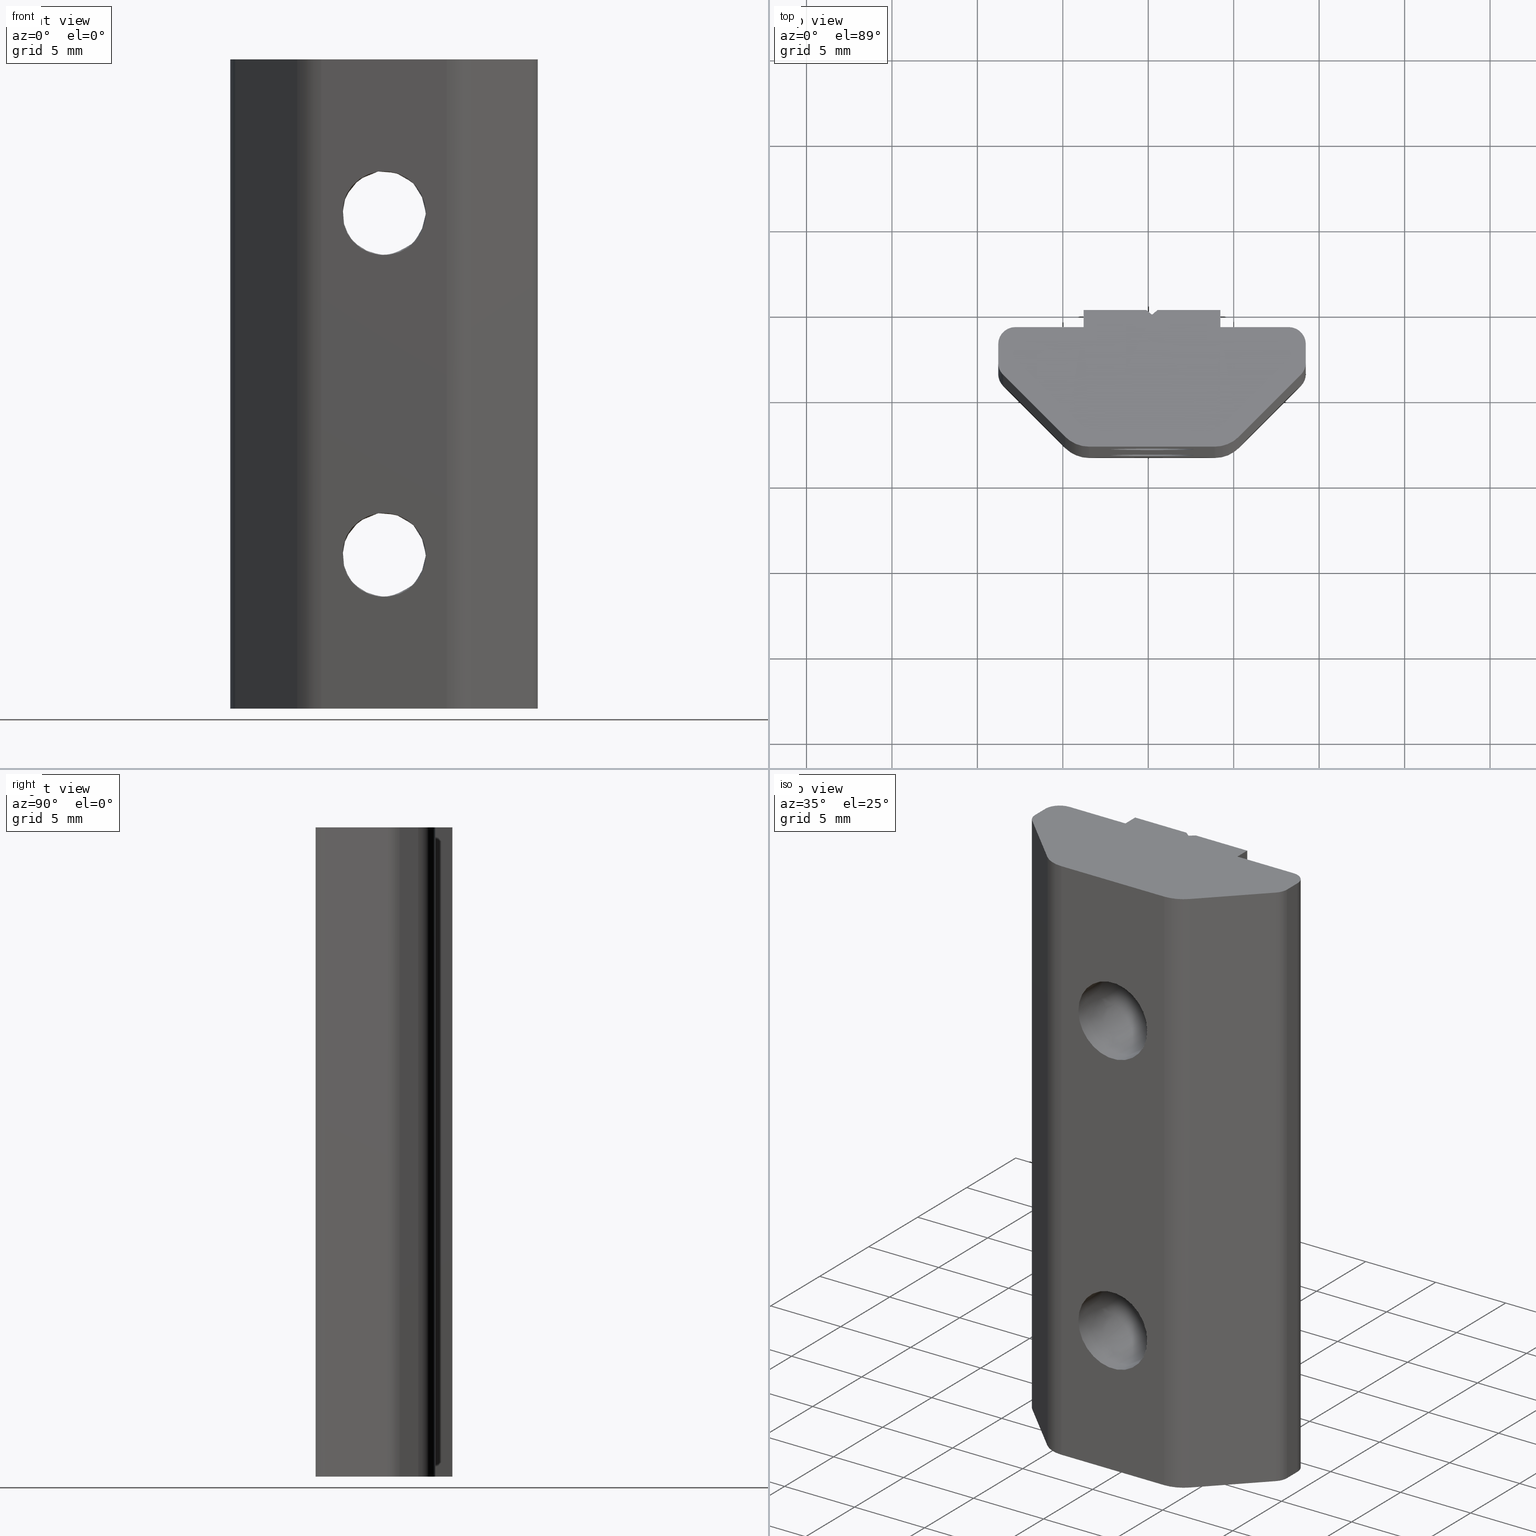
[diagram: canonical four-view strip — front | top / right | iso, engineering-drawing reading convention]
A machine part, canonical four-view strip (front | top / right | iso — engineering-drawing reading convention). The complete STEP part file that produces these views, byte-faithful:
ISO-10303-21;
HEADER;
/****************************************************************
 * Generated by software with PDE/Lib inside                    *
 * PDElib Version v51a, created Mon 03/22/2010                  *
 * International Technegroup Inc. (www.iti-oh.com)              *
 ****************************************************************/
FILE_DESCRIPTION((''),'2;1');
FILE_NAME('C:\\Users\\giancarlo\\Desktop\\Nuova cartella\\MA1400.stp','2011-05-10T15:22:58',('giancarlo'),(''),'Autodesk Inventor 2010','Autodesk Inventor 2010','');
FILE_SCHEMA(('AUTOMOTIVE_DESIGN { 1 0 10303 214 1 1 1 1 }'));
ENDSEC;
DATA;
#5=APPLICATION_CONTEXT('automotive design');
#6=APPLICATION_PROTOCOL_DEFINITION('International Standard','automotive_design',2001,#5);
#7=PRODUCT_CONTEXT('',#5,'mechanical');
#8=PRODUCT('MA1400','MA1400',$,(#7));
#9=PRODUCT_RELATED_PRODUCT_CATEGORY('part',$,(#8));
#10=PRODUCT_DEFINITION_FORMATION('',$,#8);
#11=PRODUCT_DEFINITION_CONTEXT('part definition',#5,'design');
#12=PRODUCT_DEFINITION('',$,#10,#11);
#18=(NAMED_UNIT(*)PLANE_ANGLE_UNIT()SI_UNIT($,.RADIAN.));
#19=DIMENSIONAL_EXPONENTS(0.0,0.0,0.0,0.0,0.0,0.0,0.0);
#20=PLANE_ANGLE_MEASURE_WITH_UNIT(PLANE_ANGLE_MEASURE(0.017453292500000),#18);
#24=(CONVERSION_BASED_UNIT('DEGREE',#20)NAMED_UNIT(#19)PLANE_ANGLE_UNIT());
#28=(NAMED_UNIT(*)SI_UNIT($,.STERADIAN.)SOLID_ANGLE_UNIT());
#32=(LENGTH_UNIT()NAMED_UNIT(*)SI_UNIT(.MILLI.,.METRE.));
#34=UNCERTAINTY_MEASURE_WITH_UNIT(LENGTH_MEASURE(0.010000000000000),#32,'DISTANCE_ACCURACY_VALUE','');
#36=(GEOMETRIC_REPRESENTATION_CONTEXT(3)GLOBAL_UNCERTAINTY_ASSIGNED_CONTEXT((#34))GLOBAL_UNIT_ASSIGNED_CONTEXT((#24,#28,#32))REPRESENTATION_CONTEXT('None','None'));
#37=AXIS2_PLACEMENT_3D('',#38,#39,#40);
#38=CARTESIAN_POINT('',(0.0,0.0,0.0));
#39=DIRECTION('',(0.0,0.0,1.0));
#40=DIRECTION('',(1.0,0.0,0.0));
#41=SHAPE_REPRESENTATION('',(#37),#36);
#42=PRODUCT_DEFINITION_SHAPE('','',#12);
#43=SHAPE_DEFINITION_REPRESENTATION(#42,#41);
#49=(NAMED_UNIT(*)PLANE_ANGLE_UNIT()SI_UNIT($,.RADIAN.));
#50=DIMENSIONAL_EXPONENTS(0.0,0.0,0.0,0.0,0.0,0.0,0.0);
#51=PLANE_ANGLE_MEASURE_WITH_UNIT(PLANE_ANGLE_MEASURE(0.017453292500000),#49);
#55=(CONVERSION_BASED_UNIT('DEGREE',#51)NAMED_UNIT(#50)PLANE_ANGLE_UNIT());
#59=(NAMED_UNIT(*)SI_UNIT($,.STERADIAN.)SOLID_ANGLE_UNIT());
#63=(LENGTH_UNIT()NAMED_UNIT(*)SI_UNIT(.MILLI.,.METRE.));
#65=UNCERTAINTY_MEASURE_WITH_UNIT(LENGTH_MEASURE(0.000001000000000),#63,'DISTANCE_ACCURACY_VALUE','');
#67=(GEOMETRIC_REPRESENTATION_CONTEXT(3)GLOBAL_UNCERTAINTY_ASSIGNED_CONTEXT((#65))GLOBAL_UNIT_ASSIGNED_CONTEXT((#55,#59,#63))REPRESENTATION_CONTEXT('','3D'));
#68=CARTESIAN_POINT('',(-2.240161864028735,-3.249756386998257,-9.999999999999998));
#69=CARTESIAN_POINT('',(-2.240161864028735,4.750243613001745,-9.999999999999998));
#70=CARTESIAN_POINT('',(-2.240161864028734,-3.249756386998258,-12.458499999999997));
#71=CARTESIAN_POINT('',(-2.240161864028734,4.750243613001745,-12.458499999999997));
#72=CARTESIAN_POINT('',(0.218338135971265,-3.249756386998257,-12.458499999999997));
#73=CARTESIAN_POINT('',(0.218338135971265,4.750243613001745,-12.458499999999997));
#74=CARTESIAN_POINT('',(2.676838135971265,-3.249756386998258,-12.458499999999997));
#75=CARTESIAN_POINT('',(2.676838135971265,4.750243613001745,-12.458499999999997));
#76=CARTESIAN_POINT('',(2.676838135971265,-3.249756386998257,-9.999999999999998));
#77=CARTESIAN_POINT('',(2.676838135971265,4.750243613001745,-9.999999999999998));
#78=CARTESIAN_POINT('',(2.676838135971265,-3.249756386998258,-7.541499999999999));
#79=CARTESIAN_POINT('',(2.676838135971265,4.750243613001745,-7.541499999999999));
#80=CARTESIAN_POINT('',(0.218338135971265,-3.249756386998257,-7.541499999999998));
#81=CARTESIAN_POINT('',(0.218338135971265,4.750243613001745,-7.541499999999998));
#82=CARTESIAN_POINT('',(-2.240161864028734,-3.249756386998258,-7.541499999999999));
#83=CARTESIAN_POINT('',(-2.240161864028734,4.750243613001745,-7.541499999999999));
#84=CARTESIAN_POINT('',(-2.240161864028735,-3.249756386998257,-9.999999999999998));
#85=CARTESIAN_POINT('',(-2.240161864028735,4.750243613001745,-9.999999999999998));
#93=(BOUNDED_SURFACE()B_SPLINE_SURFACE(1,2,((#68,#70,#72,#74,#76,#78,#80,#82,#84),(#69,#71,#73,#75,#77,#79,#81,#83,#85)),.UNSPECIFIED.,.F.,.T.,.U.)B_SPLINE_SURFACE_WITH_KNOTS((2,2),(3,2,2,2,3),(-1.830384380719951,1.423632296115518),(0.0,3.861802769425253,7.723605538850507,11.585408308275760,15.447211077701013),.UNSPECIFIED.)GEOMETRIC_REPRESENTATION_ITEM()RATIONAL_B_SPLINE_SURFACE(((1.0,0.707106781186548,1.0,0.707106781186548,1.0,0.707106781186548,1.0,0.707106781186548,1.0),(1.0,0.707106781186548,1.0,0.707106781186548,1.0,0.707106781186548,1.0,0.707106781186548,1.0)))REPRESENTATION_ITEM('')SURFACE());
#94=CARTESIAN_POINT('',(-0.124948554028734,4.750243613001743,-7.565584978178771));
#95=VERTEX_POINT('',#94);
#96=CARTESIAN_POINT('',(-0.124948554028734,4.750243613001743,-12.434415021821225));
#97=VERTEX_POINT('',#96);
#98=CARTESIAN_POINT('',(0.218338135971265,4.750243613001743,-9.999999999999998));
#99=DIRECTION('',(0.0,-1.0,0.0));
#100=DIRECTION('',(1.0,0.0,0.0));
#101=AXIS2_PLACEMENT_3D('',#98,#99,#100);
#102=CIRCLE('',#101,2.458500000000000);
#103=EDGE_CURVE('',#95,#97,#102,.T.);
#104=ORIENTED_EDGE('',*,*,#103,.F.);
#105=CARTESIAN_POINT('',(0.218338135971266,4.475982393001743,-7.541499999999997));
#106=VERTEX_POINT('',#105);
#107=CARTESIAN_POINT('',(0.218338135971265,4.475982393001743,-9.999999999999998));
#108=DIRECTION('',(-0.624184046707921,-0.781277336056360,0.0));
#109=DIRECTION('',(0.781277336056360,-0.624184046707921,0.0));
#110=AXIS2_PLACEMENT_3D('',#107,#108,#109);
#111=ELLIPSE('',#110,3.146769894042653,2.458500000000000);
#112=EDGE_CURVE('',#106,#95,#111,.T.);
#113=ORIENTED_EDGE('',*,*,#112,.F.);
#114=CARTESIAN_POINT('',(0.546678795971260,4.750243613001743,-7.563524130841683));
#115=VERTEX_POINT('',#114);
#116=CARTESIAN_POINT('',(0.218338135971265,4.475982393001743,-9.999999999999998));
#117=DIRECTION('',(0.641072361128141,-0.767480441312735,0.0));
#118=DIRECTION('',(0.767480441312735,0.641072361128141,0.0));
#119=AXIS2_PLACEMENT_3D('',#116,#117,#118);
#120=ELLIPSE('',#119,3.203338961700269,2.458500000000000);
#121=EDGE_CURVE('',#115,#106,#120,.T.);
#122=ORIENTED_EDGE('',*,*,#121,.F.);
#123=CARTESIAN_POINT('',(0.546678795971260,4.750243613001743,-12.436475869158311));
#124=VERTEX_POINT('',#123);
#125=CARTESIAN_POINT('',(0.218338135971265,4.750243613001743,-9.999999999999998));
#126=DIRECTION('',(0.0,-1.0,0.0));
#127=DIRECTION('',(1.0,0.0,0.0));
#128=AXIS2_PLACEMENT_3D('',#125,#126,#127);
#129=CIRCLE('',#128,2.458500000000000);
#130=EDGE_CURVE('',#124,#115,#129,.T.);
#131=ORIENTED_EDGE('',*,*,#130,.F.);
#132=CARTESIAN_POINT('',(0.218338135971266,4.475982393001743,-12.458499999999999));
#133=VERTEX_POINT('',#132);
#134=CARTESIAN_POINT('',(0.218338135971265,4.475982393001743,-9.999999999999998));
#135=DIRECTION('',(0.641072361128141,-0.767480441312735,0.0));
#136=DIRECTION('',(0.767480441312735,0.641072361128141,0.0));
#137=AXIS2_PLACEMENT_3D('',#134,#135,#136);
#138=ELLIPSE('',#137,3.203338961700269,2.458500000000000);
#139=EDGE_CURVE('',#133,#124,#138,.T.);
#140=ORIENTED_EDGE('',*,*,#139,.F.);
#141=CARTESIAN_POINT('',(0.218338135971265,4.475982393001743,-9.999999999999998));
#142=DIRECTION('',(-0.624184046707921,-0.781277336056360,0.0));
#143=DIRECTION('',(0.781277336056360,-0.624184046707921,0.0));
#144=AXIS2_PLACEMENT_3D('',#141,#142,#143);
#145=ELLIPSE('',#144,3.146769894042653,2.458500000000000);
#146=EDGE_CURVE('',#97,#133,#145,.T.);
#147=ORIENTED_EDGE('',*,*,#146,.F.);
#148=EDGE_LOOP('',(#104,#113,#122,#131,#140,#147));
#149=FACE_OUTER_BOUND('',#148,.T.);
#150=CARTESIAN_POINT('',(2.676838135971265,-3.249756386998257,-9.999999999999998));
#151=VERTEX_POINT('',#150);
#152=CARTESIAN_POINT('',(0.218338135971265,-3.249756386998257,-9.999999999999998));
#153=DIRECTION('',(0.0,1.0,0.0));
#154=DIRECTION('',(1.0,0.0,0.0));
#155=AXIS2_PLACEMENT_3D('',#152,#153,#154);
#156=CIRCLE('',#155,2.458500000000000);
#157=EDGE_CURVE('',#151,#151,#156,.T.);
#158=ORIENTED_EDGE('',*,*,#157,.F.);
#159=EDGE_LOOP('',(#158));
#160=FACE_BOUND('',#159,.T.);
#161=ADVANCED_FACE('',(#149,#160),#93,.F.);
#162=CARTESIAN_POINT('',(-2.240161864028735,-3.249756386998257,10.0));
#163=CARTESIAN_POINT('',(-2.240161864028735,4.750243613001745,10.0));
#164=CARTESIAN_POINT('',(-2.240161864028734,-3.249756386998258,7.541500000000000));
#165=CARTESIAN_POINT('',(-2.240161864028734,4.750243613001745,7.541500000000000));
#166=CARTESIAN_POINT('',(0.218338135971265,-3.249756386998257,7.541500000000000));
#167=CARTESIAN_POINT('',(0.218338135971265,4.750243613001745,7.541500000000000));
#168=CARTESIAN_POINT('',(2.676838135971265,-3.249756386998258,7.541500000000000));
#169=CARTESIAN_POINT('',(2.676838135971265,4.750243613001745,7.541500000000000));
#170=CARTESIAN_POINT('',(2.676838135971265,-3.249756386998257,10.0));
#171=CARTESIAN_POINT('',(2.676838135971265,4.750243613001745,10.0));
#172=CARTESIAN_POINT('',(2.676838135971265,-3.249756386998258,12.458499999999999));
#173=CARTESIAN_POINT('',(2.676838135971265,4.750243613001745,12.458499999999999));
#174=CARTESIAN_POINT('',(0.218338135971265,-3.249756386998257,12.458500000000001));
#175=CARTESIAN_POINT('',(0.218338135971265,4.750243613001745,12.458500000000001));
#176=CARTESIAN_POINT('',(-2.240161864028734,-3.249756386998258,12.458499999999999));
#177=CARTESIAN_POINT('',(-2.240161864028734,4.750243613001745,12.458499999999999));
#178=CARTESIAN_POINT('',(-2.240161864028735,-3.249756386998257,10.0));
#179=CARTESIAN_POINT('',(-2.240161864028735,4.750243613001745,10.0));
#187=(BOUNDED_SURFACE()B_SPLINE_SURFACE(1,2,((#162,#164,#166,#168,#170,#172,#174,#176,#178),(#163,#165,#167,#169,#171,#173,#175,#177,#179)),.UNSPECIFIED.,.F.,.T.,.U.)B_SPLINE_SURFACE_WITH_KNOTS((2,2),(3,2,2,2,3),(-1.830384380719951,1.423632296115518),(0.0,3.861802769425253,7.723605538850507,11.585408308275760,15.447211077701013),.UNSPECIFIED.)GEOMETRIC_REPRESENTATION_ITEM()RATIONAL_B_SPLINE_SURFACE(((1.0,0.707106781186548,1.0,0.707106781186548,1.0,0.707106781186548,1.0,0.707106781186548,1.0),(1.0,0.707106781186548,1.0,0.707106781186548,1.0,0.707106781186548,1.0,0.707106781186548,1.0)))REPRESENTATION_ITEM('')SURFACE());
#188=CARTESIAN_POINT('',(-0.124948554028734,4.750243613001743,12.434415021821227));
#189=VERTEX_POINT('',#188);
#190=CARTESIAN_POINT('',(-0.124948554028734,4.750243613001743,7.565584978178773));
#191=VERTEX_POINT('',#190);
#192=CARTESIAN_POINT('',(0.218338135971265,4.750243613001743,10.0));
#193=DIRECTION('',(0.0,-1.0,0.0));
#194=DIRECTION('',(1.0,0.0,0.0));
#195=AXIS2_PLACEMENT_3D('',#192,#193,#194);
#196=CIRCLE('',#195,2.458500000000000);
#197=EDGE_CURVE('',#189,#191,#196,.T.);
#198=ORIENTED_EDGE('',*,*,#197,.F.);
#199=CARTESIAN_POINT('',(0.218338135971266,4.475982393001743,12.458499999999999));
#200=VERTEX_POINT('',#199);
#201=CARTESIAN_POINT('',(0.218338135971265,4.475982393001743,10.0));
#202=DIRECTION('',(-0.624184046707921,-0.781277336056360,0.0));
#203=DIRECTION('',(0.781277336056360,-0.624184046707921,0.0));
#204=AXIS2_PLACEMENT_3D('',#201,#202,#203);
#205=ELLIPSE('',#204,3.146769894042653,2.458500000000000);
#206=EDGE_CURVE('',#200,#189,#205,.T.);
#207=ORIENTED_EDGE('',*,*,#206,.F.);
#208=CARTESIAN_POINT('',(0.546678795971260,4.750243613001743,12.436475869158315));
#209=VERTEX_POINT('',#208);
#210=CARTESIAN_POINT('',(0.218338135971265,4.475982393001743,10.0));
#211=DIRECTION('',(0.641072361128141,-0.767480441312735,0.0));
#212=DIRECTION('',(0.767480441312735,0.641072361128141,0.0));
#213=AXIS2_PLACEMENT_3D('',#210,#211,#212);
#214=ELLIPSE('',#213,3.203338961700269,2.458500000000000);
#215=EDGE_CURVE('',#209,#200,#214,.T.);
#216=ORIENTED_EDGE('',*,*,#215,.F.);
#217=CARTESIAN_POINT('',(0.546678795971260,4.750243613001743,7.563524130841684));
#218=VERTEX_POINT('',#217);
#219=CARTESIAN_POINT('',(0.218338135971265,4.750243613001743,10.0));
#220=DIRECTION('',(0.0,-1.0,0.0));
#221=DIRECTION('',(1.0,0.0,0.0));
#222=AXIS2_PLACEMENT_3D('',#219,#220,#221);
#223=CIRCLE('',#222,2.458500000000000);
#224=EDGE_CURVE('',#218,#209,#223,.T.);
#225=ORIENTED_EDGE('',*,*,#224,.F.);
#226=CARTESIAN_POINT('',(0.218338135971266,4.475982393001743,7.541500000000000));
#227=VERTEX_POINT('',#226);
#228=CARTESIAN_POINT('',(0.218338135971265,4.475982393001743,10.0));
#229=DIRECTION('',(0.641072361128141,-0.767480441312735,0.0));
#230=DIRECTION('',(0.767480441312735,0.641072361128141,0.0));
#231=AXIS2_PLACEMENT_3D('',#228,#229,#230);
#232=ELLIPSE('',#231,3.203338961700269,2.458500000000000);
#233=EDGE_CURVE('',#227,#218,#232,.T.);
#234=ORIENTED_EDGE('',*,*,#233,.F.);
#235=CARTESIAN_POINT('',(0.218338135971265,4.475982393001743,10.0));
#236=DIRECTION('',(-0.624184046707921,-0.781277336056360,0.0));
#237=DIRECTION('',(0.781277336056360,-0.624184046707921,0.0));
#238=AXIS2_PLACEMENT_3D('',#235,#236,#237);
#239=ELLIPSE('',#238,3.146769894042653,2.458500000000000);
#240=EDGE_CURVE('',#191,#227,#239,.T.);
#241=ORIENTED_EDGE('',*,*,#240,.F.);
#242=EDGE_LOOP('',(#198,#207,#216,#225,#234,#241));
#243=FACE_OUTER_BOUND('',#242,.T.);
#244=CARTESIAN_POINT('',(2.676838135971265,-3.249756386998257,10.0));
#245=VERTEX_POINT('',#244);
#246=CARTESIAN_POINT('',(0.218338135971265,-3.249756386998257,10.0));
#247=DIRECTION('',(0.0,1.0,0.0));
#248=DIRECTION('',(1.0,0.0,0.0));
#249=AXIS2_PLACEMENT_3D('',#246,#247,#248);
#250=CIRCLE('',#249,2.458500000000000);
#251=EDGE_CURVE('',#245,#245,#250,.T.);
#252=ORIENTED_EDGE('',*,*,#251,.F.);
#253=EDGE_LOOP('',(#252));
#254=FACE_BOUND('',#253,.T.);
#255=ADVANCED_FACE('',(#243,#254),#187,.F.);
#256=CARTESIAN_POINT('',(0.546678795971260,4.750243613001743,0.0));
#257=DIRECTION('',(0.0,1.0,0.0));
#258=DIRECTION('',(0.0,0.0,1.0));
#259=AXIS2_PLACEMENT_3D('',#256,#257,#258);
#260=PLANE('',#259);
#261=ORIENTED_EDGE('',*,*,#130,.T.);
#262=CARTESIAN_POINT('',(0.546678795971260,4.750243613001743,7.563524130841684));
#263=DIRECTION('',(0.0,0.0,-1.0));
#264=VECTOR('',#263,15.127048261683367);
#265=LINE('',#262,#264);
#266=EDGE_CURVE('',#218,#115,#265,.T.);
#267=ORIENTED_EDGE('',*,*,#266,.F.);
#268=ORIENTED_EDGE('',*,*,#224,.T.);
#269=CARTESIAN_POINT('',(0.546678795971260,4.750243613001743,19.0));
#270=VERTEX_POINT('',#269);
#271=CARTESIAN_POINT('',(0.546678795971260,4.750243613001743,19.0));
#272=DIRECTION('',(0.0,0.0,-1.0));
#273=VECTOR('',#272,6.563524130841685);
#274=LINE('',#271,#273);
#275=EDGE_CURVE('',#270,#209,#274,.T.);
#276=ORIENTED_EDGE('',*,*,#275,.F.);
#277=CARTESIAN_POINT('',(4.218338135971266,4.750243613001743,19.0));
#278=VERTEX_POINT('',#277);
#279=CARTESIAN_POINT('',(0.546678795971260,4.750243613001743,19.0));
#280=DIRECTION('',(1.0,0.0,0.0));
#281=VECTOR('',#280,3.671659340000005);
#282=LINE('',#279,#281);
#283=EDGE_CURVE('',#270,#278,#282,.T.);
#284=ORIENTED_EDGE('',*,*,#283,.T.);
#285=CARTESIAN_POINT('',(4.218338135971266,4.750243613001743,-19.0));
#286=VERTEX_POINT('',#285);
#287=CARTESIAN_POINT('',(4.218338135971266,4.750243613001743,19.0));
#288=DIRECTION('',(0.0,0.0,-1.0));
#289=VECTOR('',#288,38.0);
#290=LINE('',#287,#289);
#291=EDGE_CURVE('',#278,#286,#290,.T.);
#292=ORIENTED_EDGE('',*,*,#291,.T.);
#293=CARTESIAN_POINT('',(0.546678795971260,4.750243613001743,-19.0));
#294=VERTEX_POINT('',#293);
#295=CARTESIAN_POINT('',(4.218338135971266,4.750243613001743,-19.0));
#296=DIRECTION('',(-1.0,0.0,0.0));
#297=VECTOR('',#296,3.671659340000005);
#298=LINE('',#295,#297);
#299=EDGE_CURVE('',#286,#294,#298,.T.);
#300=ORIENTED_EDGE('',*,*,#299,.T.);
#301=CARTESIAN_POINT('',(0.546678795971260,4.750243613001743,-12.436475869158311));
#302=DIRECTION('',(0.0,0.0,-1.0));
#303=VECTOR('',#302,6.563524130841689);
#304=LINE('',#301,#303);
#305=EDGE_CURVE('',#124,#294,#304,.T.);
#306=ORIENTED_EDGE('',*,*,#305,.F.);
#307=EDGE_LOOP('',(#261,#267,#268,#276,#284,#292,#300,#306));
#308=FACE_OUTER_BOUND('',#307,.T.);
#309=ADVANCED_FACE('',(#308),#260,.T.);
#310=CARTESIAN_POINT('',(0.218338135971266,4.475982393001743,0.0));
#311=DIRECTION('',(-0.641072361128141,0.767480441312735,0.0));
#312=DIRECTION('',(0.0,0.0,1.0));
#313=AXIS2_PLACEMENT_3D('',#310,#311,#312);
#314=PLANE('',#313);
#315=ORIENTED_EDGE('',*,*,#215,.T.);
#316=CARTESIAN_POINT('',(0.218338135971266,4.475982393001743,19.0));
#317=VERTEX_POINT('',#316);
#318=CARTESIAN_POINT('',(0.218338135971266,4.475982393001743,19.0));
#319=DIRECTION('',(0.0,0.0,-1.0));
#320=VECTOR('',#319,6.541500000000001);
#321=LINE('',#318,#320);
#322=EDGE_CURVE('',#317,#200,#321,.T.);
#323=ORIENTED_EDGE('',*,*,#322,.F.);
#324=CARTESIAN_POINT('',(0.218338135971266,4.475982393001743,19.0));
#325=DIRECTION('',(0.767480441312735,0.641072361128141,0.0));
#326=VECTOR('',#325,0.427816322508995);
#327=LINE('',#324,#326);
#328=EDGE_CURVE('',#317,#270,#327,.T.);
#329=ORIENTED_EDGE('',*,*,#328,.T.);
#330=ORIENTED_EDGE('',*,*,#275,.T.);
#331=EDGE_LOOP('',(#315,#323,#329,#330));
#332=FACE_OUTER_BOUND('',#331,.T.);
#333=ADVANCED_FACE('',(#332),#314,.T.);
#334=CARTESIAN_POINT('',(0.218338135971266,4.475982393001743,0.0));
#335=DIRECTION('',(-0.641072361128141,0.767480441312735,0.0));
#336=DIRECTION('',(0.0,0.0,1.0));
#337=AXIS2_PLACEMENT_3D('',#334,#335,#336);
#338=PLANE('',#337);
#339=ORIENTED_EDGE('',*,*,#121,.T.);
#340=CARTESIAN_POINT('',(0.218338135971266,4.475982393001743,7.541500000000000));
#341=DIRECTION('',(0.0,0.0,-1.0));
#342=VECTOR('',#341,15.082999999999998);
#343=LINE('',#340,#342);
#344=EDGE_CURVE('',#227,#106,#343,.T.);
#345=ORIENTED_EDGE('',*,*,#344,.F.);
#346=ORIENTED_EDGE('',*,*,#233,.T.);
#347=ORIENTED_EDGE('',*,*,#266,.T.);
#348=EDGE_LOOP('',(#339,#345,#346,#347));
#349=FACE_OUTER_BOUND('',#348,.T.);
#350=ADVANCED_FACE('',(#349),#338,.T.);
#351=CARTESIAN_POINT('',(-0.124948554028734,4.750243613001743,0.0));
#352=DIRECTION('',(0.624184046707922,0.781277336056361,0.0));
#353=DIRECTION('',(0.0,0.0,-1.0));
#354=AXIS2_PLACEMENT_3D('',#351,#352,#353);
#355=PLANE('',#354);
#356=ORIENTED_EDGE('',*,*,#206,.T.);
#357=CARTESIAN_POINT('',(-0.124948554028734,4.750243613001743,19.0));
#358=VERTEX_POINT('',#357);
#359=CARTESIAN_POINT('',(-0.124948554028734,4.750243613001743,19.0));
#360=DIRECTION('',(0.0,0.0,-1.0));
#361=VECTOR('',#360,6.565584978178773);
#362=LINE('',#359,#361);
#363=EDGE_CURVE('',#358,#189,#362,.T.);
#364=ORIENTED_EDGE('',*,*,#363,.F.);
#365=CARTESIAN_POINT('',(-0.124948554028734,4.750243613001743,19.0));
#366=DIRECTION('',(0.781277336056361,-0.624184046707921,0.0));
#367=VECTOR('',#366,0.439391588821457);
#368=LINE('',#365,#367);
#369=EDGE_CURVE('',#358,#317,#368,.T.);
#370=ORIENTED_EDGE('',*,*,#369,.T.);
#371=ORIENTED_EDGE('',*,*,#322,.T.);
#372=EDGE_LOOP('',(#356,#364,#370,#371));
#373=FACE_OUTER_BOUND('',#372,.T.);
#374=ADVANCED_FACE('',(#373),#355,.T.);
#375=CARTESIAN_POINT('',(-0.124948554028734,4.750243613001743,0.0));
#376=DIRECTION('',(0.624184046707922,0.781277336056361,0.0));
#377=DIRECTION('',(0.0,0.0,-1.0));
#378=AXIS2_PLACEMENT_3D('',#375,#376,#377);
#379=PLANE('',#378);
#380=ORIENTED_EDGE('',*,*,#112,.T.);
#381=CARTESIAN_POINT('',(-0.124948554028734,4.750243613001743,7.565584978178773));
#382=DIRECTION('',(0.0,0.0,-1.0));
#383=VECTOR('',#382,15.131169956357544);
#384=LINE('',#381,#383);
#385=EDGE_CURVE('',#191,#95,#384,.T.);
#386=ORIENTED_EDGE('',*,*,#385,.F.);
#387=ORIENTED_EDGE('',*,*,#240,.T.);
#388=ORIENTED_EDGE('',*,*,#344,.T.);
#389=EDGE_LOOP('',(#380,#386,#387,#388));
#390=FACE_OUTER_BOUND('',#389,.T.);
#391=ADVANCED_FACE('',(#390),#379,.T.);
#392=CARTESIAN_POINT('',(0.218334537956858,1.147857091245414,-19.0));
#393=DIRECTION('',(0.0,0.0,1.0));
#394=DIRECTION('',(1.0,0.0,0.0));
#395=AXIS2_PLACEMENT_3D('',#392,#393,#394);
#396=PLANE('',#395);
#397=CARTESIAN_POINT('',(-3.781661864028735,3.750243613001743,-19.0));
#398=VERTEX_POINT('',#397);
#399=CARTESIAN_POINT('',(-7.781661864028735,3.750243613001743,-19.0));
#400=VERTEX_POINT('',#399);
#401=CARTESIAN_POINT('',(-3.781661864028735,3.750243613001743,-19.0));
#402=DIRECTION('',(-1.0,0.0,0.0));
#403=VECTOR('',#402,4.0);
#404=LINE('',#401,#403);
#405=EDGE_CURVE('',#398,#400,#404,.T.);
#406=ORIENTED_EDGE('',*,*,#405,.F.);
#407=CARTESIAN_POINT('',(-3.781661864028735,4.750243613001743,-19.0));
#408=VERTEX_POINT('',#407);
#409=CARTESIAN_POINT('',(-3.781661864028735,4.750243613001743,-19.0));
#410=DIRECTION('',(0.0,-1.0,0.0));
#411=VECTOR('',#410,1.0);
#412=LINE('',#409,#411);
#413=EDGE_CURVE('',#408,#398,#412,.T.);
#414=ORIENTED_EDGE('',*,*,#413,.F.);
#415=CARTESIAN_POINT('',(-0.124948554028734,4.750243613001743,-19.0));
#416=VERTEX_POINT('',#415);
#417=CARTESIAN_POINT('',(-0.124948554028733,4.750243613001743,-19.0));
#418=DIRECTION('',(-1.0,0.0,0.0));
#419=VECTOR('',#418,3.656713310000001);
#420=LINE('',#417,#419);
#421=EDGE_CURVE('',#416,#408,#420,.T.);
#422=ORIENTED_EDGE('',*,*,#421,.F.);
#423=CARTESIAN_POINT('',(0.218338135971266,4.475982393001743,-19.0));
#424=VERTEX_POINT('',#423);
#425=CARTESIAN_POINT('',(0.218338135971266,4.475982393001743,-19.0));
#426=DIRECTION('',(-0.781277336056361,0.624184046707921,0.0));
#427=VECTOR('',#426,0.439391588821457);
#428=LINE('',#425,#427);
#429=EDGE_CURVE('',#424,#416,#428,.T.);
#430=ORIENTED_EDGE('',*,*,#429,.F.);
#431=CARTESIAN_POINT('',(0.546678795971260,4.750243613001743,-19.0));
#432=DIRECTION('',(-0.767480441312735,-0.641072361128141,0.0));
#433=VECTOR('',#432,0.427816322508995);
#434=LINE('',#431,#433);
#435=EDGE_CURVE('',#294,#424,#434,.T.);
#436=ORIENTED_EDGE('',*,*,#435,.F.);
#437=ORIENTED_EDGE('',*,*,#299,.F.);
#438=CARTESIAN_POINT('',(4.218338135971266,3.750243613001743,-19.0));
#439=VERTEX_POINT('',#438);
#440=CARTESIAN_POINT('',(4.218338135971266,3.750243613001743,-19.0));
#441=DIRECTION('',(0.0,1.0,0.0));
#442=VECTOR('',#441,1.000000000000000);
#443=LINE('',#440,#442);
#444=EDGE_CURVE('',#439,#286,#443,.T.);
#445=ORIENTED_EDGE('',*,*,#444,.F.);
#446=CARTESIAN_POINT('',(8.218338135971266,3.750243613001743,-19.0));
#447=VERTEX_POINT('',#446);
#448=CARTESIAN_POINT('',(8.218338135971266,3.750243613001743,-19.0));
#449=DIRECTION('',(-1.0,0.0,0.0));
#450=VECTOR('',#449,4.0);
#451=LINE('',#448,#450);
#452=EDGE_CURVE('',#447,#439,#451,.T.);
#453=ORIENTED_EDGE('',*,*,#452,.F.);
#454=CARTESIAN_POINT('',(9.218338135971266,2.750243613001743,-19.0));
#455=VERTEX_POINT('',#454);
#456=CARTESIAN_POINT('',(8.218338131920138,2.750243608950616,-19.0));
#457=DIRECTION('',(0.0,0.0,1.0));
#458=DIRECTION('',(-1.0,-4.051127E-009,0.0));
#459=AXIS2_PLACEMENT_3D('',#456,#457,#458);
#460=CIRCLE('',#459,1.000000004051127);
#461=EDGE_CURVE('',#455,#447,#460,.T.);
#462=ORIENTED_EDGE('',*,*,#461,.F.);
#463=CARTESIAN_POINT('',(9.218338135971266,1.664457173001750,-19.0));
#464=VERTEX_POINT('',#463);
#465=CARTESIAN_POINT('',(9.218338135971266,1.664457173001751,-19.0));
#466=DIRECTION('',(0.0,1.0,0.0));
#467=VECTOR('',#466,1.085786439999993);
#468=LINE('',#465,#467);
#469=EDGE_CURVE('',#464,#455,#468,.T.);
#470=ORIENTED_EDGE('',*,*,#469,.F.);
#471=CARTESIAN_POINT('',(8.925444915971269,0.957350393001747,-19.0));
#472=VERTEX_POINT('',#471);
#473=CARTESIAN_POINT('',(8.218338148980866,1.664457169986085,-19.0));
#474=DIRECTION('',(0.0,0.0,1.0));
#475=DIRECTION('',(-0.707106776189580,0.707106786183515,0.0));
#476=AXIS2_PLACEMENT_3D('',#473,#474,#475);
#477=CIRCLE('',#476,0.999999986990400);
#478=EDGE_CURVE('',#472,#464,#477,.T.);
#479=ORIENTED_EDGE('',*,*,#478,.F.);
#480=CARTESIAN_POINT('',(5.304124575971273,-2.663969946998237,-19.0));
#481=VERTEX_POINT('',#480);
#482=CARTESIAN_POINT('',(5.304124575971271,-2.663969946998237,-19.0));
#483=DIRECTION('',(0.707106781186549,0.707106781186546,0.0));
#484=VECTOR('',#483,5.121320338525535);
#485=LINE('',#482,#484);
#486=EDGE_CURVE('',#481,#472,#485,.T.);
#487=ORIENTED_EDGE('',*,*,#486,.F.);
#488=CARTESIAN_POINT('',(3.889911015971265,-3.249756386998257,-19.0));
#489=VERTEX_POINT('',#488);
#490=CARTESIAN_POINT('',(3.889911022002561,-1.249756413017444,-19.0));
#491=DIRECTION('',(0.0,0.0,1.0));
#492=DIRECTION('',(3.015648E-009,1.0,0.0));
#493=AXIS2_PLACEMENT_3D('',#490,#491,#492);
#494=CIRCLE('',#493,1.999999973980814);
#495=EDGE_CURVE('',#489,#481,#494,.T.);
#496=ORIENTED_EDGE('',*,*,#495,.F.);
#497=CARTESIAN_POINT('',(-3.453234744028734,-3.249756386998257,-19.0));
#498=VERTEX_POINT('',#497);
#499=CARTESIAN_POINT('',(-3.453234744028734,-3.249756386998257,-19.0));
#500=DIRECTION('',(1.0,0.0,0.0));
#501=VECTOR('',#500,7.343145759999999);
#502=LINE('',#499,#501);
#503=EDGE_CURVE('',#498,#489,#502,.T.);
#504=ORIENTED_EDGE('',*,*,#503,.F.);
#505=CARTESIAN_POINT('',(-4.867448304028741,-2.663969946998237,-19.0));
#506=VERTEX_POINT('',#505);
#507=CARTESIAN_POINT('',(-3.453234750060030,-1.249756413017444,-19.0));
#508=DIRECTION('',(0.0,0.0,1.0));
#509=DIRECTION('',(0.707106786183527,0.707106776189568,0.0));
#510=AXIS2_PLACEMENT_3D('',#507,#508,#509);
#511=CIRCLE('',#510,1.999999973980813);
#512=EDGE_CURVE('',#506,#498,#511,.T.);
#513=ORIENTED_EDGE('',*,*,#512,.F.);
#514=CARTESIAN_POINT('',(-8.488768644028738,0.957350393001747,-19.0));
#515=VERTEX_POINT('',#514);
#516=CARTESIAN_POINT('',(-8.488768644028738,0.957350393001748,-19.0));
#517=DIRECTION('',(0.707106781186549,-0.707106781186546,0.0));
#518=VECTOR('',#517,5.121320338525535);
#519=LINE('',#516,#518);
#520=EDGE_CURVE('',#515,#506,#519,.T.);
#521=ORIENTED_EDGE('',*,*,#520,.F.);
#522=CARTESIAN_POINT('',(-8.781661864028735,1.664457173001751,-19.0));
#523=VERTEX_POINT('',#522);
#524=CARTESIAN_POINT('',(-7.781661877038335,1.664457169986085,-19.0));
#525=DIRECTION('',(0.0,0.0,1.0));
#526=DIRECTION('',(1.0,-3.015666E-009,0.0));
#527=AXIS2_PLACEMENT_3D('',#524,#525,#526);
#528=CIRCLE('',#527,0.999999986990400);
#529=EDGE_CURVE('',#523,#515,#528,.T.);
#530=ORIENTED_EDGE('',*,*,#529,.F.);
#531=CARTESIAN_POINT('',(-8.781661864028735,2.750243613001743,-19.0));
#532=VERTEX_POINT('',#531);
#533=CARTESIAN_POINT('',(-8.781661864028735,2.750243613001743,-19.0));
#534=DIRECTION('',(0.0,-1.0,0.0));
#535=VECTOR('',#534,1.085786439999993);
#536=LINE('',#533,#535);
#537=EDGE_CURVE('',#532,#523,#536,.T.);
#538=ORIENTED_EDGE('',*,*,#537,.F.);
#539=CARTESIAN_POINT('',(-7.781661859977609,2.750243608950616,-19.0));
#540=DIRECTION('',(0.0,0.0,1.0));
#541=DIRECTION('',(4.051126E-009,-1.0,0.0));
#542=AXIS2_PLACEMENT_3D('',#539,#540,#541);
#543=CIRCLE('',#542,1.000000004051127);
#544=EDGE_CURVE('',#400,#532,#543,.T.);
#545=ORIENTED_EDGE('',*,*,#544,.F.);
#546=EDGE_LOOP('',(#406,#414,#422,#430,#436,#437,#445,#453,#462,#470,#479,#487,#496,#504,#513,#521,#530,#538,#545));
#547=FACE_OUTER_BOUND('',#546,.T.);
#548=ADVANCED_FACE('',(#547),#396,.F.);
#549=CARTESIAN_POINT('',(-3.781661864028735,4.750243613001743,0.0));
#550=DIRECTION('',(0.0,1.0,0.0));
#551=DIRECTION('',(0.0,0.0,1.0));
#552=AXIS2_PLACEMENT_3D('',#549,#550,#551);
#553=PLANE('',#552);
#554=ORIENTED_EDGE('',*,*,#103,.T.);
#555=CARTESIAN_POINT('',(-0.124948554028734,4.750243613001743,-12.434415021821225));
#556=DIRECTION('',(0.0,0.0,-1.0));
#557=VECTOR('',#556,6.565584978178775);
#558=LINE('',#555,#557);
#559=EDGE_CURVE('',#97,#416,#558,.T.);
#560=ORIENTED_EDGE('',*,*,#559,.T.);
#561=ORIENTED_EDGE('',*,*,#421,.T.);
#562=CARTESIAN_POINT('',(-3.781661864028735,4.750243613001743,19.0));
#563=VERTEX_POINT('',#562);
#564=CARTESIAN_POINT('',(-3.781661864028735,4.750243613001743,19.0));
#565=DIRECTION('',(0.0,0.0,-1.0));
#566=VECTOR('',#565,38.0);
#567=LINE('',#564,#566);
#568=EDGE_CURVE('',#563,#408,#567,.T.);
#569=ORIENTED_EDGE('',*,*,#568,.F.);
#570=CARTESIAN_POINT('',(-3.781661864028735,4.750243613001743,19.0));
#571=DIRECTION('',(1.0,0.0,0.0));
#572=VECTOR('',#571,3.656713310000001);
#573=LINE('',#570,#572);
#574=EDGE_CURVE('',#563,#358,#573,.T.);
#575=ORIENTED_EDGE('',*,*,#574,.T.);
#576=ORIENTED_EDGE('',*,*,#363,.T.);
#577=ORIENTED_EDGE('',*,*,#197,.T.);
#578=ORIENTED_EDGE('',*,*,#385,.T.);
#579=EDGE_LOOP('',(#554,#560,#561,#569,#575,#576,#577,#578));
#580=FACE_OUTER_BOUND('',#579,.T.);
#581=ADVANCED_FACE('',(#580),#553,.T.);
#582=CARTESIAN_POINT('',(-0.124948554028734,4.750243613001743,0.0));
#583=DIRECTION('',(0.624184046707922,0.781277336056361,0.0));
#584=DIRECTION('',(0.0,0.0,-1.0));
#585=AXIS2_PLACEMENT_3D('',#582,#583,#584);
#586=PLANE('',#585);
#587=ORIENTED_EDGE('',*,*,#146,.T.);
#588=CARTESIAN_POINT('',(0.218338135971266,4.475982393001743,-12.458499999999999));
#589=DIRECTION('',(0.0,0.0,-1.0));
#590=VECTOR('',#589,6.541500000000001);
#591=LINE('',#588,#590);
#592=EDGE_CURVE('',#133,#424,#591,.T.);
#593=ORIENTED_EDGE('',*,*,#592,.T.);
#594=ORIENTED_EDGE('',*,*,#429,.T.);
#595=ORIENTED_EDGE('',*,*,#559,.F.);
#596=EDGE_LOOP('',(#587,#593,#594,#595));
#597=FACE_OUTER_BOUND('',#596,.T.);
#598=ADVANCED_FACE('',(#597),#586,.T.);
#599=CARTESIAN_POINT('',(0.218338135971266,4.475982393001743,0.0));
#600=DIRECTION('',(-0.641072361128141,0.767480441312735,0.0));
#601=DIRECTION('',(0.0,0.0,1.0));
#602=AXIS2_PLACEMENT_3D('',#599,#600,#601);
#603=PLANE('',#602);
#604=ORIENTED_EDGE('',*,*,#139,.T.);
#605=ORIENTED_EDGE('',*,*,#305,.T.);
#606=ORIENTED_EDGE('',*,*,#435,.T.);
#607=ORIENTED_EDGE('',*,*,#592,.F.);
#608=EDGE_LOOP('',(#604,#605,#606,#607));
#609=FACE_OUTER_BOUND('',#608,.T.);
#610=ADVANCED_FACE('',(#609),#603,.T.);
#611=CARTESIAN_POINT('',(4.218338135971266,4.750243613001743,0.0));
#612=DIRECTION('',(1.0,0.0,0.0));
#613=DIRECTION('',(0.0,0.0,-1.0));
#614=AXIS2_PLACEMENT_3D('',#611,#612,#613);
#615=PLANE('',#614);
#616=CARTESIAN_POINT('',(4.218338135971266,3.750243613001743,19.0));
#617=VERTEX_POINT('',#616);
#618=CARTESIAN_POINT('',(4.218338135971266,4.750243613001743,19.0));
#619=DIRECTION('',(0.0,-1.0,0.0));
#620=VECTOR('',#619,1.000000000000000);
#621=LINE('',#618,#620);
#622=EDGE_CURVE('',#278,#617,#621,.T.);
#623=ORIENTED_EDGE('',*,*,#622,.T.);
#624=CARTESIAN_POINT('',(4.218338135971266,3.750243613001743,19.0));
#625=DIRECTION('',(0.0,0.0,-1.0));
#626=VECTOR('',#625,38.0);
#627=LINE('',#624,#626);
#628=EDGE_CURVE('',#617,#439,#627,.T.);
#629=ORIENTED_EDGE('',*,*,#628,.T.);
#630=ORIENTED_EDGE('',*,*,#444,.T.);
#631=ORIENTED_EDGE('',*,*,#291,.F.);
#632=EDGE_LOOP('',(#623,#629,#630,#631));
#633=FACE_OUTER_BOUND('',#632,.T.);
#634=ADVANCED_FACE('',(#633),#615,.T.);
#635=CARTESIAN_POINT('',(4.218338135971266,3.750243613001743,0.0));
#636=DIRECTION('',(0.0,1.0,0.0));
#637=DIRECTION('',(0.0,0.0,1.0));
#638=AXIS2_PLACEMENT_3D('',#635,#636,#637);
#639=PLANE('',#638);
#640=CARTESIAN_POINT('',(8.218338135971266,3.750243613001743,19.0));
#641=VERTEX_POINT('',#640);
#642=CARTESIAN_POINT('',(4.218338135971266,3.750243613001743,19.0));
#643=DIRECTION('',(1.0,0.0,0.0));
#644=VECTOR('',#643,4.0);
#645=LINE('',#642,#644);
#646=EDGE_CURVE('',#617,#641,#645,.T.);
#647=ORIENTED_EDGE('',*,*,#646,.T.);
#648=CARTESIAN_POINT('',(8.218338135971266,3.750243613001743,19.0));
#649=DIRECTION('',(0.0,0.0,-1.0));
#650=VECTOR('',#649,38.0);
#651=LINE('',#648,#650);
#652=EDGE_CURVE('',#641,#447,#651,.T.);
#653=ORIENTED_EDGE('',*,*,#652,.T.);
#654=ORIENTED_EDGE('',*,*,#452,.T.);
#655=ORIENTED_EDGE('',*,*,#628,.F.);
#656=EDGE_LOOP('',(#647,#653,#654,#655));
#657=FACE_OUTER_BOUND('',#656,.T.);
#658=ADVANCED_FACE('',(#657),#639,.T.);
#659=CARTESIAN_POINT('',(8.218338131920138,2.750243608950616,0.0));
#660=DIRECTION('',(0.0,0.0,1.0));
#661=DIRECTION('',(-1.0,-4.051127E-009,0.0));
#662=AXIS2_PLACEMENT_3D('',#659,#660,#661);
#663=CYLINDRICAL_SURFACE('',#662,1.000000004051127);
#664=CARTESIAN_POINT('',(9.218338135971266,2.750243613001743,19.0));
#665=VERTEX_POINT('',#664);
#666=CARTESIAN_POINT('',(8.218338131920138,2.750243608950616,19.0));
#667=DIRECTION('',(0.0,0.0,-1.0));
#668=DIRECTION('',(-1.0,-4.051127E-009,0.0));
#669=AXIS2_PLACEMENT_3D('',#666,#667,#668);
#670=CIRCLE('',#669,1.000000004051127);
#671=EDGE_CURVE('',#641,#665,#670,.T.);
#672=ORIENTED_EDGE('',*,*,#671,.T.);
#673=CARTESIAN_POINT('',(9.218338135971266,2.750243613001743,19.0));
#674=DIRECTION('',(0.0,0.0,-1.0));
#675=VECTOR('',#674,38.0);
#676=LINE('',#673,#675);
#677=EDGE_CURVE('',#665,#455,#676,.T.);
#678=ORIENTED_EDGE('',*,*,#677,.T.);
#679=ORIENTED_EDGE('',*,*,#461,.T.);
#680=ORIENTED_EDGE('',*,*,#652,.F.);
#681=EDGE_LOOP('',(#672,#678,#679,#680));
#682=FACE_OUTER_BOUND('',#681,.T.);
#683=ADVANCED_FACE('',(#682),#663,.T.);
#684=CARTESIAN_POINT('',(9.218338135971266,2.750243613001743,0.0));
#685=DIRECTION('',(1.0,0.0,0.0));
#686=DIRECTION('',(0.0,0.0,-1.0));
#687=AXIS2_PLACEMENT_3D('',#684,#685,#686);
#688=PLANE('',#687);
#689=CARTESIAN_POINT('',(9.218338135971266,1.664457173001750,19.0));
#690=VERTEX_POINT('',#689);
#691=CARTESIAN_POINT('',(9.218338135971266,2.750243613001743,19.0));
#692=DIRECTION('',(0.0,-1.0,0.0));
#693=VECTOR('',#692,1.085786439999993);
#694=LINE('',#691,#693);
#695=EDGE_CURVE('',#665,#690,#694,.T.);
#696=ORIENTED_EDGE('',*,*,#695,.T.);
#697=CARTESIAN_POINT('',(9.218338135971266,1.664457173001750,19.0));
#698=DIRECTION('',(0.0,0.0,-1.0));
#699=VECTOR('',#698,38.0);
#700=LINE('',#697,#699);
#701=EDGE_CURVE('',#690,#464,#700,.T.);
#702=ORIENTED_EDGE('',*,*,#701,.T.);
#703=ORIENTED_EDGE('',*,*,#469,.T.);
#704=ORIENTED_EDGE('',*,*,#677,.F.);
#705=EDGE_LOOP('',(#696,#702,#703,#704));
#706=FACE_OUTER_BOUND('',#705,.T.);
#707=ADVANCED_FACE('',(#706),#688,.T.);
#708=CARTESIAN_POINT('',(8.218338148980866,1.664457169986085,0.0));
#709=DIRECTION('',(0.0,0.0,1.0));
#710=DIRECTION('',(-0.707106776189580,0.707106786183515,0.0));
#711=AXIS2_PLACEMENT_3D('',#708,#709,#710);
#712=CYLINDRICAL_SURFACE('',#711,0.999999986990400);
#713=CARTESIAN_POINT('',(8.925444915971269,0.957350393001747,19.0));
#714=VERTEX_POINT('',#713);
#715=CARTESIAN_POINT('',(8.218338148980866,1.664457169986085,19.0));
#716=DIRECTION('',(0.0,0.0,-1.0));
#717=DIRECTION('',(-0.707106776189580,0.707106786183515,0.0));
#718=AXIS2_PLACEMENT_3D('',#715,#716,#717);
#719=CIRCLE('',#718,0.999999986990400);
#720=EDGE_CURVE('',#690,#714,#719,.T.);
#721=ORIENTED_EDGE('',*,*,#720,.T.);
#722=CARTESIAN_POINT('',(8.925444915971269,0.957350393001747,19.0));
#723=DIRECTION('',(0.0,0.0,-1.0));
#724=VECTOR('',#723,38.0);
#725=LINE('',#722,#724);
#726=EDGE_CURVE('',#714,#472,#725,.T.);
#727=ORIENTED_EDGE('',*,*,#726,.T.);
#728=ORIENTED_EDGE('',*,*,#478,.T.);
#729=ORIENTED_EDGE('',*,*,#701,.F.);
#730=EDGE_LOOP('',(#721,#727,#728,#729));
#731=FACE_OUTER_BOUND('',#730,.T.);
#732=ADVANCED_FACE('',(#731),#712,.T.);
#733=CARTESIAN_POINT('',(8.925444915971269,0.957350393001747,0.0));
#734=DIRECTION('',(0.707106781186546,-0.707106781186549,0.0));
#735=DIRECTION('',(0.0,0.0,-1.0));
#736=AXIS2_PLACEMENT_3D('',#733,#734,#735);
#737=PLANE('',#736);
#738=CARTESIAN_POINT('',(5.304124575971273,-2.663969946998237,19.0));
#739=VERTEX_POINT('',#738);
#740=CARTESIAN_POINT('',(8.925444915971269,0.957350393001747,19.0));
#741=DIRECTION('',(-0.707106781186549,-0.707106781186546,0.0));
#742=VECTOR('',#741,5.121320338525535);
#743=LINE('',#740,#742);
#744=EDGE_CURVE('',#714,#739,#743,.T.);
#745=ORIENTED_EDGE('',*,*,#744,.T.);
#746=CARTESIAN_POINT('',(5.304124575971273,-2.663969946998237,19.0));
#747=DIRECTION('',(0.0,0.0,-1.0));
#748=VECTOR('',#747,38.0);
#749=LINE('',#746,#748);
#750=EDGE_CURVE('',#739,#481,#749,.T.);
#751=ORIENTED_EDGE('',*,*,#750,.T.);
#752=ORIENTED_EDGE('',*,*,#486,.T.);
#753=ORIENTED_EDGE('',*,*,#726,.F.);
#754=EDGE_LOOP('',(#745,#751,#752,#753));
#755=FACE_OUTER_BOUND('',#754,.T.);
#756=ADVANCED_FACE('',(#755),#737,.T.);
#757=CARTESIAN_POINT('',(3.889911022002561,-1.249756413017444,0.0));
#758=DIRECTION('',(0.0,0.0,1.0));
#759=DIRECTION('',(3.015648E-009,1.0,0.0));
#760=AXIS2_PLACEMENT_3D('',#757,#758,#759);
#761=CYLINDRICAL_SURFACE('',#760,1.999999973980814);
#762=CARTESIAN_POINT('',(3.889911015971265,-3.249756386998257,19.0));
#763=VERTEX_POINT('',#762);
#764=CARTESIAN_POINT('',(3.889911022002561,-1.249756413017444,19.0));
#765=DIRECTION('',(0.0,0.0,-1.0));
#766=DIRECTION('',(3.015648E-009,1.0,0.0));
#767=AXIS2_PLACEMENT_3D('',#764,#765,#766);
#768=CIRCLE('',#767,1.999999973980814);
#769=EDGE_CURVE('',#739,#763,#768,.T.);
#770=ORIENTED_EDGE('',*,*,#769,.T.);
#771=CARTESIAN_POINT('',(3.889911015971265,-3.249756386998257,19.0));
#772=DIRECTION('',(0.0,0.0,-1.0));
#773=VECTOR('',#772,38.0);
#774=LINE('',#771,#773);
#775=EDGE_CURVE('',#763,#489,#774,.T.);
#776=ORIENTED_EDGE('',*,*,#775,.T.);
#777=ORIENTED_EDGE('',*,*,#495,.T.);
#778=ORIENTED_EDGE('',*,*,#750,.F.);
#779=EDGE_LOOP('',(#770,#776,#777,#778));
#780=FACE_OUTER_BOUND('',#779,.T.);
#781=ADVANCED_FACE('',(#780),#761,.T.);
#782=CARTESIAN_POINT('',(3.889911015971265,-3.249756386998257,0.0));
#783=DIRECTION('',(0.0,-1.0,0.0));
#784=DIRECTION('',(0.0,0.0,-1.0));
#785=AXIS2_PLACEMENT_3D('',#782,#783,#784);
#786=PLANE('',#785);
#787=CARTESIAN_POINT('',(-3.453234744028734,-3.249756386998257,19.0));
#788=VERTEX_POINT('',#787);
#789=CARTESIAN_POINT('',(3.889911015971265,-3.249756386998257,19.0));
#790=DIRECTION('',(-1.0,0.0,0.0));
#791=VECTOR('',#790,7.343145759999999);
#792=LINE('',#789,#791);
#793=EDGE_CURVE('',#763,#788,#792,.T.);
#794=ORIENTED_EDGE('',*,*,#793,.T.);
#795=CARTESIAN_POINT('',(-3.453234744028734,-3.249756386998257,19.0));
#796=DIRECTION('',(0.0,0.0,-1.0));
#797=VECTOR('',#796,38.0);
#798=LINE('',#795,#797);
#799=EDGE_CURVE('',#788,#498,#798,.T.);
#800=ORIENTED_EDGE('',*,*,#799,.T.);
#801=ORIENTED_EDGE('',*,*,#503,.T.);
#802=ORIENTED_EDGE('',*,*,#775,.F.);
#803=EDGE_LOOP('',(#794,#800,#801,#802));
#804=FACE_OUTER_BOUND('',#803,.T.);
#805=ORIENTED_EDGE('',*,*,#157,.T.);
#806=EDGE_LOOP('',(#805));
#807=FACE_BOUND('',#806,.T.);
#808=ORIENTED_EDGE('',*,*,#251,.T.);
#809=EDGE_LOOP('',(#808));
#810=FACE_BOUND('',#809,.T.);
#811=ADVANCED_FACE('',(#804,#807,#810),#786,.T.);
#812=CARTESIAN_POINT('',(-3.453234750060030,-1.249756413017444,0.0));
#813=DIRECTION('',(0.0,0.0,1.0));
#814=DIRECTION('',(0.707106786183527,0.707106776189568,0.0));
#815=AXIS2_PLACEMENT_3D('',#812,#813,#814);
#816=CYLINDRICAL_SURFACE('',#815,1.999999973980813);
#817=CARTESIAN_POINT('',(-4.867448304028741,-2.663969946998237,19.0));
#818=VERTEX_POINT('',#817);
#819=CARTESIAN_POINT('',(-3.453234750060030,-1.249756413017444,19.0));
#820=DIRECTION('',(0.0,0.0,-1.0));
#821=DIRECTION('',(0.707106786183527,0.707106776189568,0.0));
#822=AXIS2_PLACEMENT_3D('',#819,#820,#821);
#823=CIRCLE('',#822,1.999999973980813);
#824=EDGE_CURVE('',#788,#818,#823,.T.);
#825=ORIENTED_EDGE('',*,*,#824,.T.);
#826=CARTESIAN_POINT('',(-4.867448304028741,-2.663969946998237,19.0));
#827=DIRECTION('',(0.0,0.0,-1.0));
#828=VECTOR('',#827,38.0);
#829=LINE('',#826,#828);
#830=EDGE_CURVE('',#818,#506,#829,.T.);
#831=ORIENTED_EDGE('',*,*,#830,.T.);
#832=ORIENTED_EDGE('',*,*,#512,.T.);
#833=ORIENTED_EDGE('',*,*,#799,.F.);
#834=EDGE_LOOP('',(#825,#831,#832,#833));
#835=FACE_OUTER_BOUND('',#834,.T.);
#836=ADVANCED_FACE('',(#835),#816,.T.);
#837=CARTESIAN_POINT('',(-4.867448304028741,-2.663969946998237,0.0));
#838=DIRECTION('',(-0.707106781186546,-0.707106781186549,0.0));
#839=DIRECTION('',(0.0,0.0,1.0));
#840=AXIS2_PLACEMENT_3D('',#837,#838,#839);
#841=PLANE('',#840);
#842=CARTESIAN_POINT('',(-8.488768644028738,0.957350393001747,19.0));
#843=VERTEX_POINT('',#842);
#844=CARTESIAN_POINT('',(-4.867448304028741,-2.663969946998237,19.0));
#845=DIRECTION('',(-0.707106781186549,0.707106781186546,0.0));
#846=VECTOR('',#845,5.121320338525535);
#847=LINE('',#844,#846);
#848=EDGE_CURVE('',#818,#843,#847,.T.);
#849=ORIENTED_EDGE('',*,*,#848,.T.);
#850=CARTESIAN_POINT('',(-8.488768644028738,0.957350393001747,19.0));
#851=DIRECTION('',(0.0,0.0,-1.0));
#852=VECTOR('',#851,38.0);
#853=LINE('',#850,#852);
#854=EDGE_CURVE('',#843,#515,#853,.T.);
#855=ORIENTED_EDGE('',*,*,#854,.T.);
#856=ORIENTED_EDGE('',*,*,#520,.T.);
#857=ORIENTED_EDGE('',*,*,#830,.F.);
#858=EDGE_LOOP('',(#849,#855,#856,#857));
#859=FACE_OUTER_BOUND('',#858,.T.);
#860=ADVANCED_FACE('',(#859),#841,.T.);
#861=CARTESIAN_POINT('',(-7.781661877038335,1.664457169986085,0.0));
#862=DIRECTION('',(0.0,0.0,1.0));
#863=DIRECTION('',(1.0,-3.015666E-009,0.0));
#864=AXIS2_PLACEMENT_3D('',#861,#862,#863);
#865=CYLINDRICAL_SURFACE('',#864,0.999999986990400);
#866=CARTESIAN_POINT('',(-8.781661864028735,1.664457173001751,19.0));
#867=VERTEX_POINT('',#866);
#868=CARTESIAN_POINT('',(-7.781661877038335,1.664457169986085,19.0));
#869=DIRECTION('',(0.0,0.0,-1.0));
#870=DIRECTION('',(1.0,-3.015666E-009,0.0));
#871=AXIS2_PLACEMENT_3D('',#868,#869,#870);
#872=CIRCLE('',#871,0.999999986990400);
#873=EDGE_CURVE('',#843,#867,#872,.T.);
#874=ORIENTED_EDGE('',*,*,#873,.T.);
#875=CARTESIAN_POINT('',(-8.781661864028735,1.664457173001751,19.0));
#876=DIRECTION('',(0.0,0.0,-1.0));
#877=VECTOR('',#876,38.0);
#878=LINE('',#875,#877);
#879=EDGE_CURVE('',#867,#523,#878,.T.);
#880=ORIENTED_EDGE('',*,*,#879,.T.);
#881=ORIENTED_EDGE('',*,*,#529,.T.);
#882=ORIENTED_EDGE('',*,*,#854,.F.);
#883=EDGE_LOOP('',(#874,#880,#881,#882));
#884=FACE_OUTER_BOUND('',#883,.T.);
#885=ADVANCED_FACE('',(#884),#865,.T.);
#886=CARTESIAN_POINT('',(-8.781661864028735,1.664457173001751,0.0));
#887=DIRECTION('',(-1.0,0.0,0.0));
#888=DIRECTION('',(0.0,0.0,1.0));
#889=AXIS2_PLACEMENT_3D('',#886,#887,#888);
#890=PLANE('',#889);
#891=CARTESIAN_POINT('',(-8.781661864028735,2.750243613001743,19.0));
#892=VERTEX_POINT('',#891);
#893=CARTESIAN_POINT('',(-8.781661864028735,1.664457173001751,19.0));
#894=DIRECTION('',(0.0,1.0,0.0));
#895=VECTOR('',#894,1.085786439999993);
#896=LINE('',#893,#895);
#897=EDGE_CURVE('',#867,#892,#896,.T.);
#898=ORIENTED_EDGE('',*,*,#897,.T.);
#899=CARTESIAN_POINT('',(-8.781661864028735,2.750243613001743,19.0));
#900=DIRECTION('',(0.0,0.0,-1.0));
#901=VECTOR('',#900,38.0);
#902=LINE('',#899,#901);
#903=EDGE_CURVE('',#892,#532,#902,.T.);
#904=ORIENTED_EDGE('',*,*,#903,.T.);
#905=ORIENTED_EDGE('',*,*,#537,.T.);
#906=ORIENTED_EDGE('',*,*,#879,.F.);
#907=EDGE_LOOP('',(#898,#904,#905,#906));
#908=FACE_OUTER_BOUND('',#907,.T.);
#909=ADVANCED_FACE('',(#908),#890,.T.);
#910=CARTESIAN_POINT('',(-7.781661859977609,2.750243608950616,0.0));
#911=DIRECTION('',(0.0,0.0,1.0));
#912=DIRECTION('',(4.051126E-009,-1.0,0.0));
#913=AXIS2_PLACEMENT_3D('',#910,#911,#912);
#914=CYLINDRICAL_SURFACE('',#913,1.000000004051127);
#915=CARTESIAN_POINT('',(-7.781661864028735,3.750243613001743,19.0));
#916=VERTEX_POINT('',#915);
#917=CARTESIAN_POINT('',(-7.781661859977609,2.750243608950616,19.0));
#918=DIRECTION('',(0.0,0.0,-1.0));
#919=DIRECTION('',(4.051126E-009,-1.0,0.0));
#920=AXIS2_PLACEMENT_3D('',#917,#918,#919);
#921=CIRCLE('',#920,1.000000004051127);
#922=EDGE_CURVE('',#892,#916,#921,.T.);
#923=ORIENTED_EDGE('',*,*,#922,.T.);
#924=CARTESIAN_POINT('',(-7.781661864028735,3.750243613001743,19.0));
#925=DIRECTION('',(0.0,0.0,-1.0));
#926=VECTOR('',#925,38.0);
#927=LINE('',#924,#926);
#928=EDGE_CURVE('',#916,#400,#927,.T.);
#929=ORIENTED_EDGE('',*,*,#928,.T.);
#930=ORIENTED_EDGE('',*,*,#544,.T.);
#931=ORIENTED_EDGE('',*,*,#903,.F.);
#932=EDGE_LOOP('',(#923,#929,#930,#931));
#933=FACE_OUTER_BOUND('',#932,.T.);
#934=ADVANCED_FACE('',(#933),#914,.T.);
#935=CARTESIAN_POINT('',(-7.781661864028735,3.750243613001743,0.0));
#936=DIRECTION('',(0.0,1.0,0.0));
#937=DIRECTION('',(0.0,0.0,1.0));
#938=AXIS2_PLACEMENT_3D('',#935,#936,#937);
#939=PLANE('',#938);
#940=CARTESIAN_POINT('',(-3.781661864028735,3.750243613001743,19.0));
#941=VERTEX_POINT('',#940);
#942=CARTESIAN_POINT('',(-7.781661864028735,3.750243613001743,19.0));
#943=DIRECTION('',(1.0,0.0,0.0));
#944=VECTOR('',#943,4.0);
#945=LINE('',#942,#944);
#946=EDGE_CURVE('',#916,#941,#945,.T.);
#947=ORIENTED_EDGE('',*,*,#946,.T.);
#948=CARTESIAN_POINT('',(-3.781661864028735,3.750243613001743,-19.0));
#949=DIRECTION('',(0.0,0.0,1.0));
#950=VECTOR('',#949,38.0);
#951=LINE('',#948,#950);
#952=EDGE_CURVE('',#398,#941,#951,.T.);
#953=ORIENTED_EDGE('',*,*,#952,.F.);
#954=ORIENTED_EDGE('',*,*,#405,.T.);
#955=ORIENTED_EDGE('',*,*,#928,.F.);
#956=EDGE_LOOP('',(#947,#953,#954,#955));
#957=FACE_OUTER_BOUND('',#956,.T.);
#958=ADVANCED_FACE('',(#957),#939,.T.);
#959=CARTESIAN_POINT('',(-3.781661864028735,3.750243613001743,0.0));
#960=DIRECTION('',(-1.0,0.0,0.0));
#961=DIRECTION('',(0.0,0.0,1.0));
#962=AXIS2_PLACEMENT_3D('',#959,#960,#961);
#963=PLANE('',#962);
#964=CARTESIAN_POINT('',(-3.781661864028735,3.750243613001743,19.0));
#965=DIRECTION('',(0.0,1.0,0.0));
#966=VECTOR('',#965,1.0);
#967=LINE('',#964,#966);
#968=EDGE_CURVE('',#941,#563,#967,.T.);
#969=ORIENTED_EDGE('',*,*,#968,.T.);
#970=ORIENTED_EDGE('',*,*,#568,.T.);
#971=ORIENTED_EDGE('',*,*,#413,.T.);
#972=ORIENTED_EDGE('',*,*,#952,.T.);
#973=EDGE_LOOP('',(#969,#970,#971,#972));
#974=FACE_OUTER_BOUND('',#973,.T.);
#975=ADVANCED_FACE('',(#974),#963,.T.);
#976=CARTESIAN_POINT('',(0.218334537956858,1.147857091245414,19.0));
#977=DIRECTION('',(0.0,0.0,1.0));
#978=DIRECTION('',(1.0,0.0,0.0));
#979=AXIS2_PLACEMENT_3D('',#976,#977,#978);
#980=PLANE('',#979);
#981=ORIENTED_EDGE('',*,*,#574,.F.);
#982=ORIENTED_EDGE('',*,*,#968,.F.);
#983=ORIENTED_EDGE('',*,*,#946,.F.);
#984=ORIENTED_EDGE('',*,*,#922,.F.);
#985=ORIENTED_EDGE('',*,*,#897,.F.);
#986=ORIENTED_EDGE('',*,*,#873,.F.);
#987=ORIENTED_EDGE('',*,*,#848,.F.);
#988=ORIENTED_EDGE('',*,*,#824,.F.);
#989=ORIENTED_EDGE('',*,*,#793,.F.);
#990=ORIENTED_EDGE('',*,*,#769,.F.);
#991=ORIENTED_EDGE('',*,*,#744,.F.);
#992=ORIENTED_EDGE('',*,*,#720,.F.);
#993=ORIENTED_EDGE('',*,*,#695,.F.);
#994=ORIENTED_EDGE('',*,*,#671,.F.);
#995=ORIENTED_EDGE('',*,*,#646,.F.);
#996=ORIENTED_EDGE('',*,*,#622,.F.);
#997=ORIENTED_EDGE('',*,*,#283,.F.);
#998=ORIENTED_EDGE('',*,*,#328,.F.);
#999=ORIENTED_EDGE('',*,*,#369,.F.);
#1000=EDGE_LOOP('',(#981,#982,#983,#984,#985,#986,#987,#988,#989,#990,#991,#992,#993,#994,#995,#996,#997,#998,#999));
#1001=FACE_OUTER_BOUND('',#1000,.T.);
#1002=ADVANCED_FACE('',(#1001),#980,.T.);
#1003=CLOSED_SHELL('',(#161,#255,#309,#333,#350,#374,#391,#548,#581,#598,#610,#634,#658,#683,#707,#732,#756,#781,#811,#836,#860,#885,#909,#934,#958,#975,#1002));
#1004=MANIFOLD_SOLID_BREP('Solido1',#1003);
#1005=COLOUR_RGB('Default',0.752941191196442,0.752941191196442,0.752941191196442);
#1006=FILL_AREA_STYLE_COLOUR('Default',#1005);
#1007=FILL_AREA_STYLE('Default',(#1006));
#1008=SURFACE_STYLE_FILL_AREA(#1007);
#1009=SURFACE_SIDE_STYLE('Default',(#1008));
#1010=SURFACE_STYLE_USAGE(.BOTH.,#1009);
#1011=PRESENTATION_STYLE_ASSIGNMENT((#1010));
#1012=STYLED_ITEM('',(#1011),#1004);
#1013=MECHANICAL_DESIGN_GEOMETRIC_PRESENTATION_REPRESENTATION('',(#1012),#36);
#1014=ADVANCED_BREP_SHAPE_REPRESENTATION('ABSR',(#1004),#36);
#1015=SHAPE_REPRESENTATION_RELATIONSHIP('SRR','None',#1014,#41);
ENDSEC;
END-ISO-10303-21;
